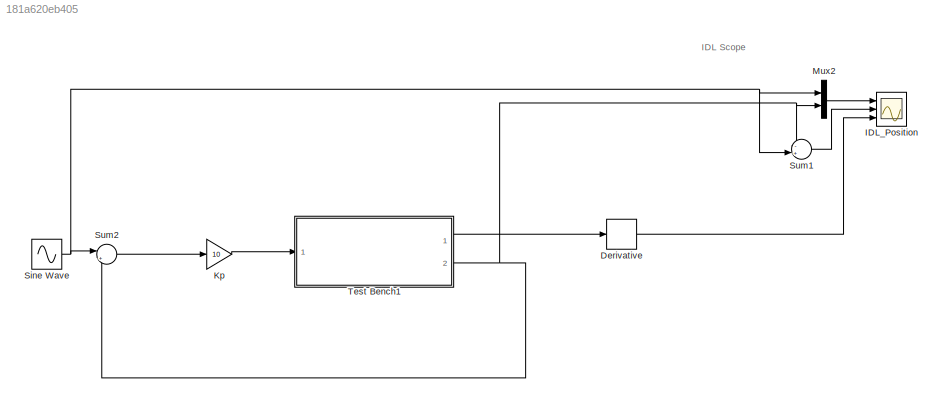
MODEL slx_181a620eb405
KIND model
CONFIG AbsTol = auto
CONFIG EnableMultiTasking = on
CONFIG FixedStep = 0.001
CONFIG MaxStep = auto
CONFIG MinStep = auto
CONFIG RelTol = 1e-3
CONFIG SampleTimeConstraint = Unconstrained
CONFIG Solver = ode5
CONFIG SolverName = ode5
CONFIG StartTime = 0.0
CONFIG StopTime = inf
BLOCK [Derivative] Derivative
  Commented = through
BLOCK [Scope] IDL_Position
  NumInputPorts = 3
  Ports = [3]
  ScopeSpecificationString = Simulink.scopes.TimeScopeBlockCfg('CurrentConfiguration', extmgr.ConfigurationSet(extmgr.Configuration('Core','General UI',true,'FigureColor',[1 1 1]),extmgr.Configuration('Core','Source UI',true),extmgr.Configuration('Sources','WiredSimulink',true),extmgr.Configuration('Visuals','Time Domain',true,'SerializedDisplays',{struct('MinYLimReal','-2.52551','MaxYLimReal','2.68044','YLabelReal','Position...<+3277ch>
BLOCK [Gain] Kp
  Gain = 10
  OutDataTypeStr = Inherit: Inherit via internal rule
  ParamDataTypeStr = Inherit: Inherit via internal rule
  SaturateOnIntegerOverflow = off
BLOCK [Mux] Mux2
  DisplayOption = bar
  Inputs = 2
  Ports = [2, 1]
BLOCK [Sin] Sine Wave
  Amplitude = 2
  Ports = [0, 1]
  SampleTime = 0
BLOCK [Sum] Sum1
  IconShape = round
  InputSameDT = off
  Inputs = -+|
  OutDataTypeStr = Inherit: Inherit via internal rule
  Ports = [2, 1]
  SaturateOnIntegerOverflow = off
BLOCK [Sum] Sum2
  IconShape = round
  InputSameDT = off
  Inputs = |+-
  OutDataTypeStr = Inherit: Inherit via internal rule
  Ports = [2, 1]
  SaturateOnIntegerOverflow = off
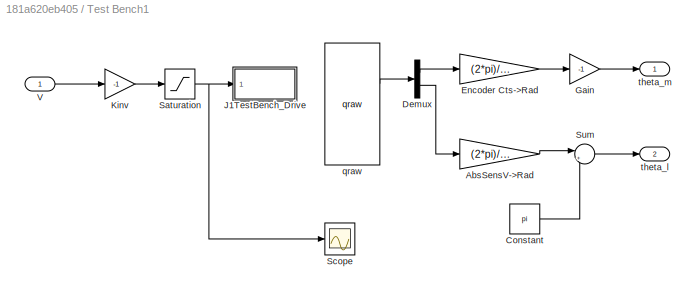
BLOCK [SubSystem] Test Bench1
  Ports = [1, 2]
  RequestExecContextInheritance = off
  Variant = off
BLOCK [Gain] Test Bench1/AbsSensV->Rad
  Gain = (2*pi)/10
  OutDataTypeStr = Inherit: Inherit via internal rule
  ParamDataTypeStr = Inherit: Inherit via internal rule
  SaturateOnIntegerOverflow = off
BLOCK [Constant] Test Bench1/Constant
  Value = pi
BLOCK [Demux] Test Bench1/Demux
  DisplayOption = bar
  Outputs = 2
  Ports = [1, 2]
BLOCK [Gain] Test Bench1/Encoder Cts->Rad
  Gain = (2*pi)/4096
  OutDataTypeStr = Inherit: Inherit via internal rule
  ParamDataTypeStr = Inherit: Inherit via internal rule
  SaturateOnIntegerOverflow = off
BLOCK [Gain] Test Bench1/Gain
  Gain = -1
  OutDataTypeStr = Inherit: Inherit via internal rule
  ParamDataTypeStr = Inherit: Inherit via internal rule
  SaturateOnIntegerOverflow = off
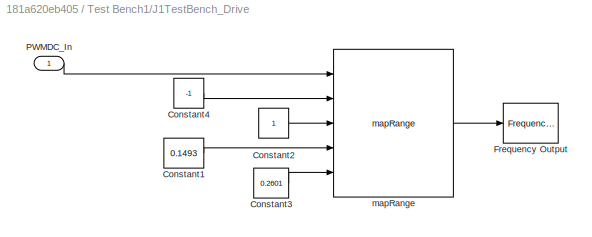
BLOCK [SubSystem] Test Bench1/J1TestBench_Drive
  Ports = [1]
  RequestExecContextInheritance = off
  Variant = off
BLOCK [Constant] Test Bench1/J1TestBench_Drive/Constant1
  Value = 0.1493
BLOCK [Constant] Test Bench1/J1TestBench_Drive/Constant2
BLOCK [Constant] Test Bench1/J1TestBench_Drive/Constant3
  Value = 0.2601
BLOCK [Constant] Test Bench1/J1TestBench_Drive/Constant4
  Value = -1
BLOCK [Reference] Test Bench1/J1TestBench_Drive/Frequency Output  REF=sldrtlib/Frequency Output
  AttributesFormatString = Humusoft\nMF644 [auto]
  Ports = [1]
  SourceBlock = sldrtlib/Frequency Output
  SourceType = Simulink Desktop Real-Time Frequency Output
BLOCK [Inport] Test Bench1/J1TestBench_Drive/PWMDC_In
  IconDisplay = Port number
BLOCK [Reference] Test Bench1/J1TestBench_Drive/mapRange   REF=dcpctrl/mapRange

  Ports = [5, 1]
  SourceBlock = dcpctrl/mapRange
  SourceType = SubSystem
BLOCK [Gain] Test Bench1/Kinv
  Gain = -1
  OutDataTypeStr = Inherit: Inherit via internal rule
  ParamDataTypeStr = Inherit: Inherit via internal rule
  SaturateOnIntegerOverflow = off
BLOCK [Saturate] Test Bench1/Saturation
  InputPortMap = u0
  LowerLimit = -1
  Ports = [1, 1]
  UpperLimit = 1
BLOCK [Scope] Test Bench1/Scope
  NumInputPorts = 1
  Ports = [1]
  ScopeSpecificationString = Simulink.scopes.TimeScopeBlockCfg('CurrentConfiguration', extmgr.ConfigurationSet(extmgr.Configuration('Core','General UI',true),extmgr.Configuration('Core','Source UI',true),extmgr.Configuration('Sources','WiredSimulink',true,'DataLoggingVariableName','ScopeData3'),extmgr.Configuration('Visuals','Time Domain',true,'SerializedDisplays',{struct('MinYLimReal','-0.01026','MaxYLimReal','0.00826','YLab...<+1756ch>
BLOCK [Sum] Test Bench1/Sum
  IconShape = round
  InputSameDT = off
  Inputs = |+-
  OutDataTypeStr = Inherit: Inherit via internal rule
  Ports = [2, 1]
  SaturateOnIntegerOverflow = off
BLOCK [Inport] Test Bench1/V
  IconDisplay = Port number
BLOCK [Reference] Test Bench1/qraw  REF=dcpctrl/qraw
  Ports = [0, 5]
  SourceBlock = dcpctrl/qraw
  SourceType = SubSystem
BLOCK [Outport] Test Bench1/theta_l
  IconDisplay = Port number
  Port = 2
BLOCK [Outport] Test Bench1/theta_m
  IconDisplay = Port number
ANNOTATION (root): IDL Scope
LINE Derivative:1 -> IDL_Position:3
LINE Kp:1 -> Test Bench1:1
LINE Mux2:1 -> IDL_Position:1
NET Sine Wave:1 -> Mux2:1, Sum1:2, Sum2:1
LINE Sum1:1 -> IDL_Position:2
LINE Sum2:1 -> Kp:1
LINE Test Bench1/AbsSensV->Rad:1 -> Test Bench1/Sum:1
LINE Test Bench1/Constant:1 -> Test Bench1/Sum:2
LINE Test Bench1/Demux:1 -> Test Bench1/Encoder Cts->Rad:1
LINE Test Bench1/Demux:2 -> Test Bench1/AbsSensV->Rad:1
LINE Test Bench1/Encoder Cts->Rad:1 -> Test Bench1/Gain:1
LINE Test Bench1/Gain:1 -> Test Bench1/theta_m:1
LINE Test Bench1/J1TestBench_Drive/Constant1:1 -> Test Bench1/J1TestBench_Drive/mapRange :4
LINE Test Bench1/J1TestBench_Drive/Constant2:1 -> Test Bench1/J1TestBench_Drive/mapRange :3
LINE Test Bench1/J1TestBench_Drive/Constant3:1 -> Test Bench1/J1TestBench_Drive/mapRange :5
LINE Test Bench1/J1TestBench_Drive/Constant4:1 -> Test Bench1/J1TestBench_Drive/mapRange :2
LINE Test Bench1/J1TestBench_Drive/PWMDC_In:1 -> Test Bench1/J1TestBench_Drive/mapRange :1
LINE Test Bench1/J1TestBench_Drive/mapRange :1 -> Test Bench1/J1TestBench_Drive/Frequency Output:1
LINE Test Bench1/Kinv:1 -> Test Bench1/Saturation:1
NET Test Bench1/Saturation:1 -> Test Bench1/J1TestBench_Drive:1, Test Bench1/Scope:1
LINE Test Bench1/Sum:1 -> Test Bench1/theta_l:1
LINE Test Bench1/V:1 -> Test Bench1/Kinv:1
LINE Test Bench1/qraw:2 -> Test Bench1/Demux:1
LINE Test Bench1:1 -> Derivative:1
NET Test Bench1:2 -> Mux2:2, Sum1:1, Sum2:2
note: NET lines group one-source signal fan-out (src -> all destinations, sorted); 1:1 wires keep LINE
